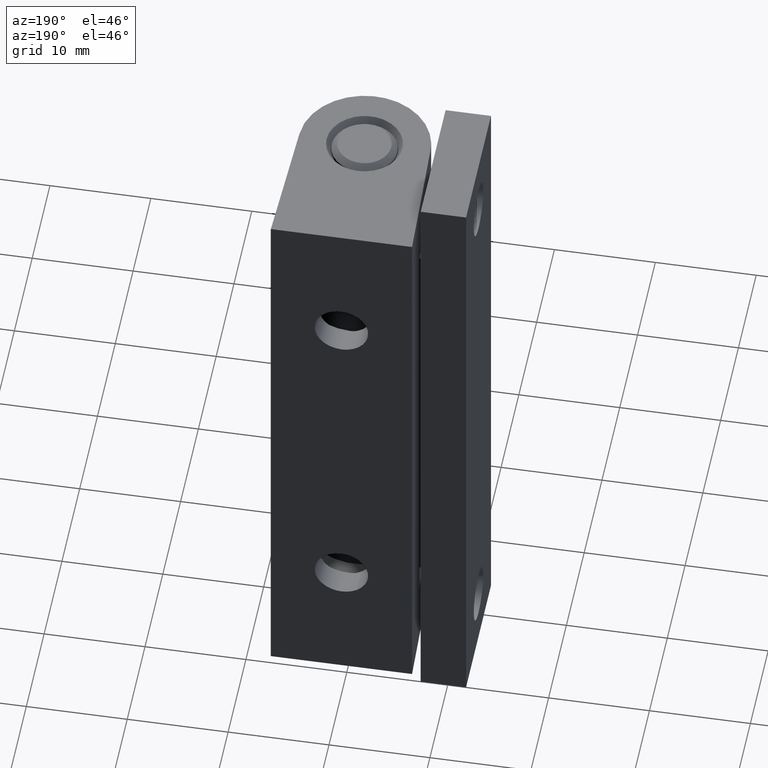
[diagram: clean part render]
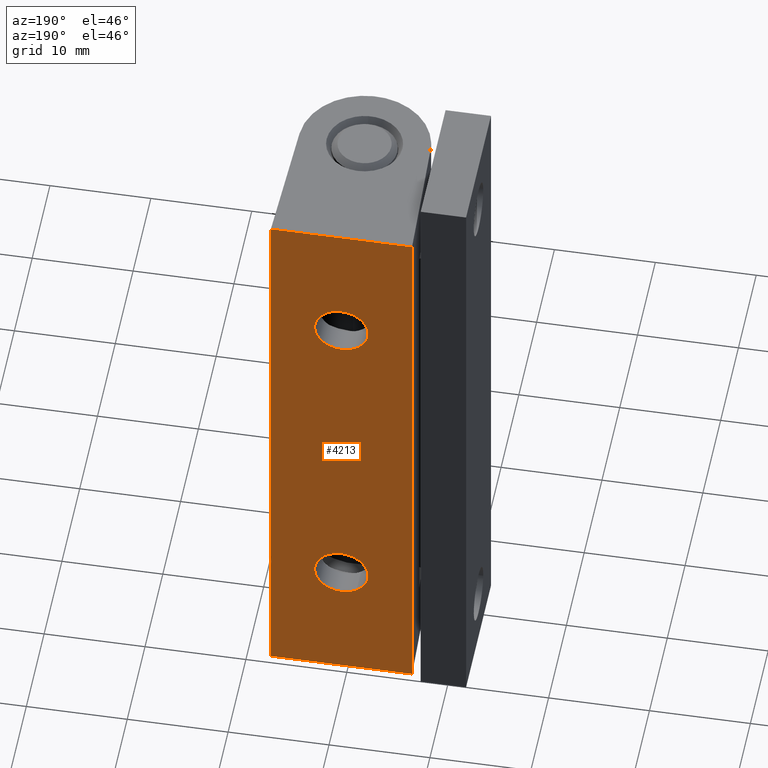
[diagram: same view with one face highlighted and labeled with its STEP entity id]
A machine part, auxiliary view. The second image highlights one B-rep face of the part: STEP entity #4213.
In plain terms, the highlighted face is a freeform B-spline surface patch.
Its self-contained STEP definition (entity closure, byte-faithful):
#2644=CARTESIAN_POINT('',(0.0,13.000000617466840,10.350002248213000));
#2645=VERTEX_POINT('',#2644);
#2646=CARTESIAN_POINT('',(-1.512726616101009,13.000000617466840,10.824190173391379));
#2647=VERTEX_POINT('',#2646);
#2648=CARTESIAN_POINT('',(0.0,13.000000617466840,10.350002248213000));
#2649=CARTESIAN_POINT('',(-0.830684135751756,13.000000617466844,10.350002248213000));
#2650=CARTESIAN_POINT('',(-1.512726616101010,13.000000617466840,10.824190173391376));
#2658=(BOUNDED_CURVE()B_SPLINE_CURVE(2,(#2648,#2649,#2650),.UNSPECIFIED.,.F.,.U.)B_SPLINE_CURVE_WITH_KNOTS((3,3),(0.500000000000000,0.598090608938983),.UNSPECIFIED.)CURVE()GEOMETRIC_REPRESENTATION_ITEM()RATIONAL_B_SPLINE_CURVE((1.0,0.885079703249958,0.860340221601199))REPRESENTATION_ITEM(''));
#2659=EDGE_CURVE('',#2645,#2647,#2658,.T.);
#2732=CARTESIAN_POINT('',(-2.641830934391651,13.000000617466840,12.792085644519760));
#2733=VERTEX_POINT('',#2732);
#2739=CARTESIAN_POINT('',(0.0,13.000000617466840,15.650002248212999));
#2740=VERTEX_POINT('',#2739);
#2741=CARTESIAN_POINT('',(-2.641830934391651,13.000000617466844,12.792085644519764));
#2742=CARTESIAN_POINT('',(-2.650000000000000,13.000000617466842,12.895883464628154));
#2743=CARTESIAN_POINT('',(-2.650000000000000,13.000000617466840,13.000002248213001));
#2744=CARTESIAN_POINT('',(-2.650000000000000,13.000000617466839,15.650002248213003));
#2745=CARTESIAN_POINT('',(0.0,13.000000617466840,15.650002248212999));
#2753=(BOUNDED_CURVE()B_SPLINE_CURVE(2,(#2741,#2742,#2743,#2744,#2745),.UNSPECIFIED.,.F.,.U.)B_SPLINE_CURVE_WITH_KNOTS((3,2,3),(0.736331300630891,0.750000000000000,1.0),.UNSPECIFIED.)CURVE()GEOMETRIC_REPRESENTATION_ITEM()RATIONAL_B_SPLINE_CURVE((0.969723356167902,0.983986122579154,1.0,0.707106781186548,1.0))REPRESENTATION_ITEM(''));
#2754=EDGE_CURVE('',#2733,#2740,#2753,.T.);
#2756=CARTESIAN_POINT('',(0.0,13.000000617466840,15.650002248212999));
#2757=CARTESIAN_POINT('',(2.650000000000000,13.000000617466839,15.650002248213003));
#2758=CARTESIAN_POINT('',(2.650000000000000,13.000000617466840,13.000002248213001));
#2759=CARTESIAN_POINT('',(2.650000000000000,13.000000617466839,10.350002248213000));
#2760=CARTESIAN_POINT('',(0.0,13.000000617466840,10.350002248213000));
#2768=(BOUNDED_CURVE()B_SPLINE_CURVE(2,(#2756,#2757,#2758,#2759,#2760),.UNSPECIFIED.,.F.,.U.)B_SPLINE_CURVE_WITH_KNOTS((3,2,3),(0.0,0.250000000000000,0.500000000000000),.UNSPECIFIED.)CURVE()GEOMETRIC_REPRESENTATION_ITEM()RATIONAL_B_SPLINE_CURVE((1.0,0.707106781186548,1.0,0.707106781186548,1.0))REPRESENTATION_ITEM(''));
#2769=EDGE_CURVE('',#2740,#2645,#2768,.T.);
#2788=CARTESIAN_POINT('',(-1.512726616101010,13.000000617466844,10.824190173391376));
#2789=CARTESIAN_POINT('',(-2.543346766622296,13.000000617466833,11.540725645745608));
#2790=CARTESIAN_POINT('',(-2.641830934391651,13.000000617466835,12.792085644519755));
#2798=(BOUNDED_CURVE()B_SPLINE_CURVE(2,(#2788,#2789,#2790),.UNSPECIFIED.,.F.,.U.)B_SPLINE_CURVE_WITH_KNOTS((3,3),(0.598090608938982,0.736331300630891),.UNSPECIFIED.)CURVE()GEOMETRIC_REPRESENTATION_ITEM()RATIONAL_B_SPLINE_CURVE((0.860340221601199,0.825474467455954,0.969723356167901))REPRESENTATION_ITEM(''));
#2799=EDGE_CURVE('',#2647,#2733,#2798,.T.);
#2992=CARTESIAN_POINT('',(-2.645057215813040,13.000000617466840,47.161779231482697));
#2993=VERTEX_POINT('',#2992);
#2999=CARTESIAN_POINT('',(0.0,13.000000617466840,49.650000601635099));
#3000=VERTEX_POINT('',#2999);
#3001=CARTESIAN_POINT('',(0.0,13.000000617466840,49.650000601635099));
#3002=CARTESIAN_POINT('',(-2.492871077148598,13.000000617466839,49.650000601635114));
#3003=CARTESIAN_POINT('',(-2.645057215813039,13.000000617466840,47.161779231482697));
#3011=(BOUNDED_CURVE()B_SPLINE_CURVE(2,(#3001,#3002,#3003),.UNSPECIFIED.,.F.,.U.)B_SPLINE_CURVE_WITH_KNOTS((3,3),(0.500000000000000,0.739332962231502),.UNSPECIFIED.)CURVE()GEOMETRIC_REPRESENTATION_ITEM()RATIONAL_B_SPLINE_CURVE((1.0,0.719603993295428,0.976072041650771))REPRESENTATION_ITEM(''));
#3012=EDGE_CURVE('',#3000,#2993,#3011,.T.);
#3014=CARTESIAN_POINT('',(0.931787632160687,13.000000617466840,49.480781085384599));
#3015=VERTEX_POINT('',#3014);
#3016=CARTESIAN_POINT('',(0.931787632160687,13.000000617466837,49.480781085384599));
#3017=CARTESIAN_POINT('',(0.481259573102318,13.000000617466839,49.650000601635107));
#3018=CARTESIAN_POINT('',(0.0,13.000000617466840,49.650000601635099));
#3026=(BOUNDED_CURVE()B_SPLINE_CURVE(2,(#3016,#3017,#3018),.UNSPECIFIED.,.F.,.U.)B_SPLINE_CURVE_WITH_KNOTS((3,3),(0.440284170895978,0.500000000000000),.UNSPECIFIED.)CURVE()GEOMETRIC_REPRESENTATION_ITEM()RATIONAL_B_SPLINE_CURVE((0.893499554632178,0.930038554398436,1.0))REPRESENTATION_ITEM(''));
#3027=EDGE_CURVE('',#3015,#3000,#3026,.T.);
#3077=CARTESIAN_POINT('',(0.0,13.000000617466840,44.350000601635102));
#3078=VERTEX_POINT('',#3077);
#3079=CARTESIAN_POINT('',(0.0,13.000000617466840,44.350000601635102));
#3080=CARTESIAN_POINT('',(2.650000000000000,13.000000617466839,44.350000601635109));
#3081=CARTESIAN_POINT('',(2.650000000000000,13.000000617466840,47.000000601635101));
#3082=CARTESIAN_POINT('',(2.650000000000000,13.000000617466837,48.835416030188924));
#3083=CARTESIAN_POINT('',(0.931787632160687,13.000000617466844,49.480781085384606));
#3091=(BOUNDED_CURVE()B_SPLINE_CURVE(2,(#3079,#3080,#3081,#3082,#3083),.UNSPECIFIED.,.F.,.U.)B_SPLINE_CURVE_WITH_KNOTS((3,2,3),(0.0,0.250000000000000,0.440284170895978),.UNSPECIFIED.)CURVE()GEOMETRIC_REPRESENTATION_ITEM()RATIONAL_B_SPLINE_CURVE((1.0,0.707106781186548,1.0,0.777068226788112,0.893499554632178))REPRESENTATION_ITEM(''));
#3092=EDGE_CURVE('',#3078,#3015,#3091,.T.);
#3094=CARTESIAN_POINT('',(-2.645057215813039,13.000000617466840,47.161779231482697));
#3095=CARTESIAN_POINT('',(-2.650000000000000,13.000000617466833,47.080965424456807));
#3096=CARTESIAN_POINT('',(-2.650000000000000,13.000000617466840,47.000000601635101));
#3097=CARTESIAN_POINT('',(-2.650000000000000,13.000000617466839,44.350000601635109));
#3098=CARTESIAN_POINT('',(0.0,13.000000617466840,44.350000601635102));
#3106=(BOUNDED_CURVE()B_SPLINE_CURVE(2,(#3094,#3095,#3096,#3097,#3098),.UNSPECIFIED.,.F.,.U.)B_SPLINE_CURVE_WITH_KNOTS((3,2,3),(0.739332962231501,0.750000000000000,1.0),.UNSPECIFIED.)CURVE()GEOMETRIC_REPRESENTATION_ITEM()RATIONAL_B_SPLINE_CURVE((0.976072041650769,0.987502787891119,1.0,0.707106781186548,1.0))REPRESENTATION_ITEM(''));
#3107=EDGE_CURVE('',#2993,#3078,#3106,.T.);
#4085=CARTESIAN_POINT('',(-7.000000332482120,13.000000617466840,60.000002849848201));
#4086=VERTEX_POINT('',#4085);
#4109=CARTESIAN_POINT('',(7.000000332482069,13.000000617466840,60.000002849848201));
#4110=VERTEX_POINT('',#4109);
#4116=CARTESIAN_POINT('',(-7.000000332482120,13.000000617466840,60.000002849848201));
#4117=CARTESIAN_POINT('',(7.000000332482069,13.000000617466840,60.000002849848201));
#4118=QUASI_UNIFORM_CURVE('',1,(#4116,#4117),.UNSPECIFIED.,.F.,.U.);
#4119=EDGE_CURVE('',#4086,#4110,#4118,.T.);
#4137=CARTESIAN_POINT('',(-7.000000332482120,13.000000617466840,0.0));
#4138=VERTEX_POINT('',#4137);
#4144=CARTESIAN_POINT('',(7.000000332482069,13.000000617466840,0.0));
#4145=VERTEX_POINT('',#4144);
#4146=CARTESIAN_POINT('',(-7.000000332482120,13.000000617466840,0.0));
#4147=CARTESIAN_POINT('',(7.000000332482069,13.000000617466840,0.0));
#4148=QUASI_UNIFORM_CURVE('',1,(#4146,#4147),.UNSPECIFIED.,.F.,.U.);
#4149=EDGE_CURVE('',#4138,#4145,#4148,.T.);
#4182=CARTESIAN_POINT('',(-7.699300469984353,13.000000617466840,62.997004002380692));
#4183=CARTESIAN_POINT('',(-7.699300469984353,13.000000617466840,-2.997001688974291));
#4184=CARTESIAN_POINT('',(7.699300720323822,13.000000617466840,62.997004002380692));
#4185=CARTESIAN_POINT('',(7.699300720323822,13.000000617466840,-2.997001688974291));
#4186=B_SPLINE_SURFACE_WITH_KNOTS('',1,1,((#4182,#4184),(#4183,#4185)),.UNSPECIFIED.,.F.,.F.,.U.,(2,2),(2,2),(0.0,65.994005691354971),(0.0,15.398601190308179),.UNSPECIFIED.);
#4187=ORIENTED_EDGE('',*,*,#4119,.T.);
#4188=CARTESIAN_POINT('',(7.000000332482069,13.000000617466840,0.0));
#4189=CARTESIAN_POINT('',(7.000000332482069,13.000000617466840,60.000002849848201));
#4190=QUASI_UNIFORM_CURVE('',1,(#4188,#4189),.UNSPECIFIED.,.F.,.U.);
#4191=EDGE_CURVE('',#4145,#4110,#4190,.T.);
#4192=ORIENTED_EDGE('',*,*,#4191,.F.);
#4193=ORIENTED_EDGE('',*,*,#4149,.F.);
#4194=CARTESIAN_POINT('',(-7.000000332482120,13.000000617466840,0.0));
#4195=CARTESIAN_POINT('',(-7.000000332482120,13.000000617466840,60.000002849848201));
#4196=QUASI_UNIFORM_CURVE('',1,(#4194,#4195),.UNSPECIFIED.,.F.,.U.);
#4197=EDGE_CURVE('',#4138,#4086,#4196,.T.);
#4198=ORIENTED_EDGE('',*,*,#4197,.T.);
#4199=EDGE_LOOP('',(#4187,#4192,#4193,#4198));
#4200=FACE_OUTER_BOUND('',#4199,.T.);
#4201=ORIENTED_EDGE('',*,*,#2769,.F.);
#4202=ORIENTED_EDGE('',*,*,#2754,.F.);
#4203=ORIENTED_EDGE('',*,*,#2799,.F.);
#4204=ORIENTED_EDGE('',*,*,#2659,.F.);
#4205=EDGE_LOOP('',(#4201,#4202,#4203,#4204));
#4206=FACE_BOUND('',#4205,.T.);
#4207=ORIENTED_EDGE('',*,*,#3012,.T.);
#4208=ORIENTED_EDGE('',*,*,#3107,.T.);
#4209=ORIENTED_EDGE('',*,*,#3092,.T.);
#4210=ORIENTED_EDGE('',*,*,#3027,.T.);
#4211=EDGE_LOOP('',(#4207,#4208,#4209,#4210));
#4212=FACE_BOUND('',#4211,.T.);
#4213=ADVANCED_FACE('',(#4200,#4206,#4212),#4186,.F.);